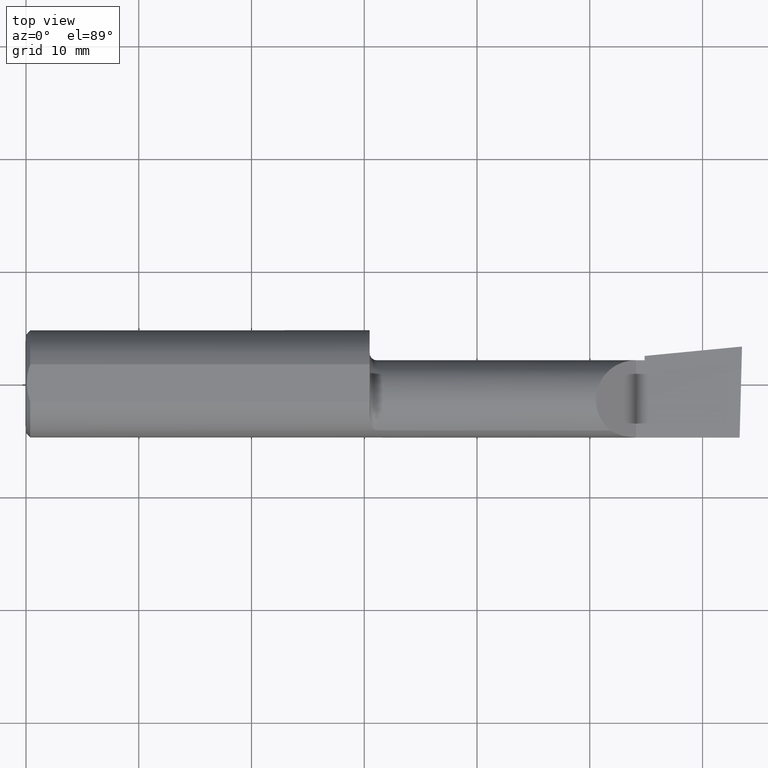
[diagram: clean part render]
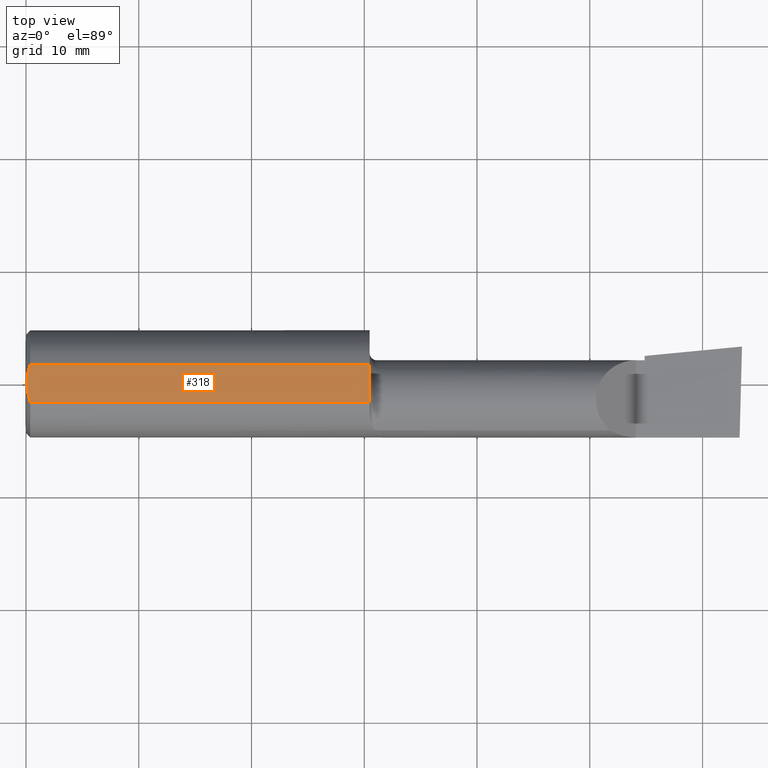
[diagram: same view with one face highlighted and labeled with its STEP entity id]
A machine part, top view. The second image highlights one B-rep face of the part: STEP entity #318.
In plain terms, the highlighted planar face has unit normal (0, -0, -1).
Its self-contained STEP definition (entity closure, byte-faithful):
#37 = CARTESIAN_POINT ( 'NONE',  ( 1.199999999999999956, 0.2373500000000000332, 0.1753499999999999504 ) ) ;
#53 = DIRECTION ( 'NONE',  ( 1.000000000000000000, 0.000000000000000000, 0.000000000000000000 ) ) ;
#65 = CARTESIAN_POINT ( 'NONE',  ( 1.199999999999999956, -0.06597272163553659363, 0.1753499999999999781 ) ) ;
#71 = CARTESIAN_POINT ( 'NONE',  ( 0.003000000000000169632, 0.01127363201155560934, 0.1753499999999999781 ) ) ;
#106 = B_SPLINE_CURVE_WITH_KNOTS ( 'NONE', 3,
 ( #464, #172, #602, #368, #563, #162 ),
 .UNSPECIFIED., .F., .F.,
 ( 4, 2, 4 ),
 ( 0.001779942938356815062, 0.002629978419973711019, 0.003480013901590607410 ),
 .UNSPECIFIED. ) ;
#110 = CARTESIAN_POINT ( 'NONE',  ( 0.01499999999999999424, 0.06597272163553663527, 0.1753499999999999781 ) ) ;
#117 = VERTEX_POINT ( 'NONE', #400 ) ;
#125 = LINE ( 'NONE', #616, #140 ) ;
#138 = AXIS2_PLACEMENT_3D ( 'NONE', #304, #352, #210 ) ;
#139 = EDGE_LOOP ( 'NONE', ( #305, #567, #295, #608, #476 ) ) ;
#140 = VECTOR ( 'NONE', #568, 39.37007874015748143 ) ;
#153 = PLANE ( 'NONE',  #138 ) ;
#160 = CARTESIAN_POINT ( 'NONE',  ( 0.000000000000000000, 0.06597272163553663527, 0.1753499999999999781 ) ) ;
#162 = CARTESIAN_POINT ( 'NONE',  ( 0.003000000000000218638, 2.334609556160449697E-17, 0.1753499999999999781 ) ) ;
#164 = EDGE_CURVE ( 'NONE', #117, #465, #413, .T. ) ;
#166 = EDGE_CURVE ( 'NONE', #512, #117, #106, .T. ) ;
#172 = CARTESIAN_POINT ( 'NONE',  ( 0.01128414053810044941, -0.05542038647445821781, 0.1753499999999999781 ) ) ;
#173 = DIRECTION ( 'NONE',  ( 6.829619984160658046E-18, -1.000000000000000000, 1.438723400918613551E-16 ) ) ;
#180 = CARTESIAN_POINT ( 'NONE',  ( 0.01499999999999997863, -0.06597272163553657975, 0.1753499999999999781 ) ) ;
#206 = CARTESIAN_POINT ( 'NONE',  ( 0.003000000000000218638, 2.334609556160449697E-17, 0.1753499999999999781 ) ) ;
#210 = DIRECTION ( 'NONE',  ( 0.000000000000000000, 1.000000000000000000, -1.438723400918613551E-16 ) ) ;
#246 = FACE_OUTER_BOUND ( 'NONE', #139, .T. ) ;
#264 = CARTESIAN_POINT ( 'NONE',  ( 0.008244775919947424855, 0.04453482769755855164, 0.1753499999999999504 ) ) ;
#270 = VECTOR ( 'NONE', #173, 39.37007874015748143 ) ;
#295 = ORIENTED_EDGE ( 'NONE', *, *, #164, .F. ) ;
#304 = CARTESIAN_POINT ( 'NONE',  ( 2.500000000000000000, 0.2373500000000000332, 0.1753499999999999504 ) ) ;
#305 = ORIENTED_EDGE ( 'NONE', *, *, #565, .F. ) ;
#318 = ADVANCED_FACE ( 'NONE', ( #246 ), #153, .F. ) ;
#325 = VECTOR ( 'NONE', #53, 39.37007874015748143 ) ;
#352 = DIRECTION ( 'NONE',  ( 0.000000000000000000, -1.438723400918613551E-16, -1.000000000000000000 ) ) ;
#367 = EDGE_CURVE ( 'NONE', #465, #576, #444, .T. ) ;
#368 = CARTESIAN_POINT ( 'NONE',  ( 0.004093196532652216939, -0.02240707710020816909, 0.1753499999999999504 ) ) ;
#372 = CARTESIAN_POINT ( 'NONE',  ( 0.01499999999999999424, 0.06597272163553663527, 0.1753499999999999781 ) ) ;
#400 = CARTESIAN_POINT ( 'NONE',  ( 0.003000000000000218638, 2.334609556160449697E-17, 0.1753499999999999781 ) ) ;
#413 = B_SPLINE_CURVE_WITH_KNOTS ( 'NONE', 3,
 ( #206, #71, #597, #264, #611, #110 ),
 .UNSPECIFIED., .F., .F.,
 ( 4, 2, 4 ),
 ( 0.003480013901590607410, 0.004330767971208083697, 0.005181522040825559984 ),
 .UNSPECIFIED. ) ;
#444 = LINE ( 'NONE', #160, #325 ) ;
#464 = CARTESIAN_POINT ( 'NONE',  ( 0.01499999999999997863, -0.06597272163553657975, 0.1753499999999999781 ) ) ;
#465 = VERTEX_POINT ( 'NONE', #372 ) ;
#476 = ORIENTED_EDGE ( 'NONE', *, *, #518, .F. ) ;
#512 = VERTEX_POINT ( 'NONE', #180 ) ;
#518 = EDGE_CURVE ( 'NONE', #581, #512, #125, .T. ) ;
#563 = CARTESIAN_POINT ( 'NONE',  ( 0.003000000000000172667, -0.01126410975715121283, 0.1753500000000000059 ) ) ;
#565 = EDGE_CURVE ( 'NONE', #576, #581, #613, .T. ) ;
#567 = ORIENTED_EDGE ( 'NONE', *, *, #367, .F. ) ;
#568 = DIRECTION ( 'NONE',  ( -1.000000000000000000, -0.000000000000000000, -0.000000000000000000 ) ) ;
#576 = VERTEX_POINT ( 'NONE', #606 ) ;
#581 = VERTEX_POINT ( 'NONE', #65 ) ;
#597 = CARTESIAN_POINT ( 'NONE',  ( 0.004115035183746292881, 0.02255629470626744487, 0.1753499999999999781 ) ) ;
#602 = CARTESIAN_POINT ( 'NONE',  ( 0.008227791779583789808, -0.04447712204611815878, 0.1753499999999999781 ) ) ;
#606 = CARTESIAN_POINT ( 'NONE',  ( 1.199999999999999956, 0.06597272163553663527, 0.1753499999999999781 ) ) ;
#608 = ORIENTED_EDGE ( 'NONE', *, *, #166, .F. ) ;
#611 = CARTESIAN_POINT ( 'NONE',  ( 0.01125230581755086272, 0.05532998191409922023, 0.1753500000000000059 ) ) ;
#613 = LINE ( 'NONE', #37, #270 ) ;
#616 = CARTESIAN_POINT ( 'NONE',  ( 0.000000000000000000, -0.06597272163553657975, 0.1753499999999999781 ) ) ;